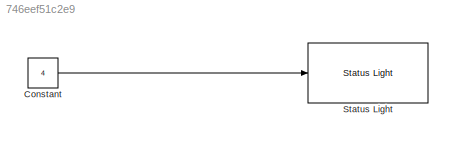
MODEL slx_746eef51c2e9
KIND model
CONFIG AbsTol = auto
CONFIG EnableMultiTasking = on
CONFIG FixedStep = auto
CONFIG MaxStep = auto
CONFIG MinStep = auto
CONFIG RelTol = 1e-3
CONFIG SampleTimeConstraint = Unconstrained
CONFIG Solver = FixedStepAuto
CONFIG SolverName = FixedStepAuto
CONFIG StartTime = 0.0
CONFIG StopTime = 10.0
BLOCK [Constant] Constant
  Value = 4
BLOCK [Reference] Status Light  REF=legoev3lib/Status Light
  Ports = [1]
  SourceBlock = legoev3lib/Status Light
  SourceType = LEGO MINDSTORMS EV3 Status Light
LINE Constant:1 -> Status Light:1
